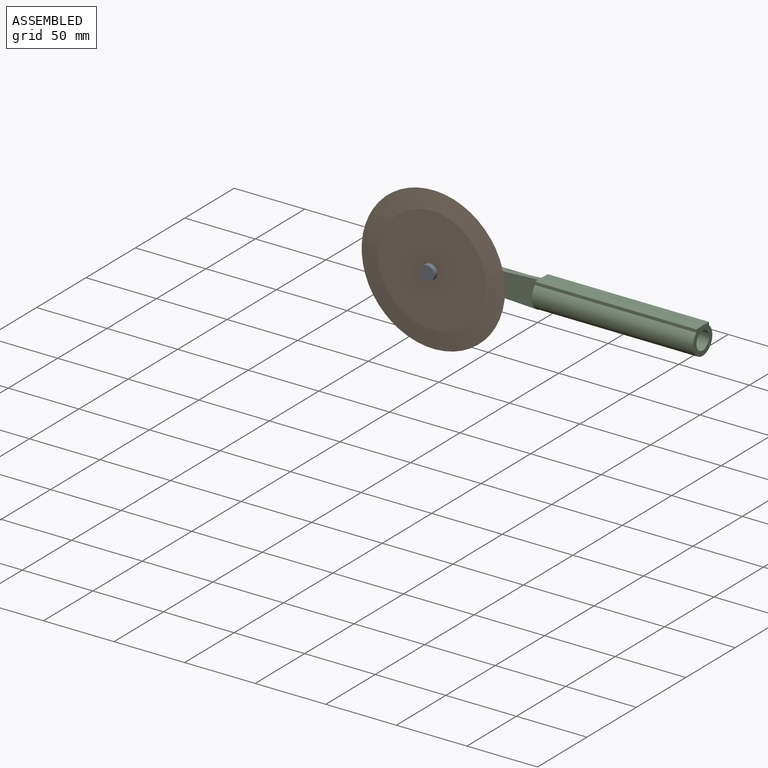
[diagram: assembled view]
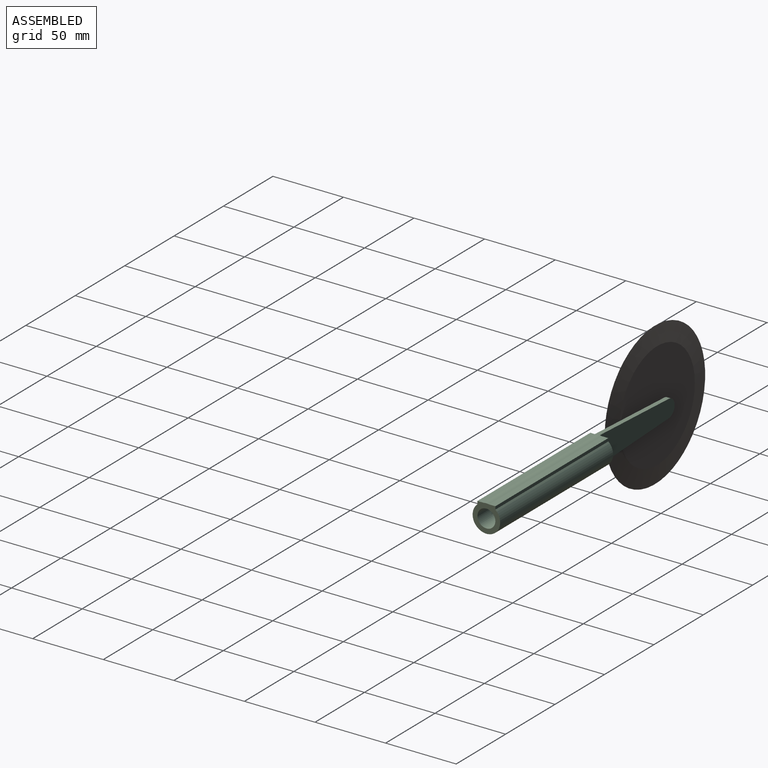
[diagram: assembled view, second angle]
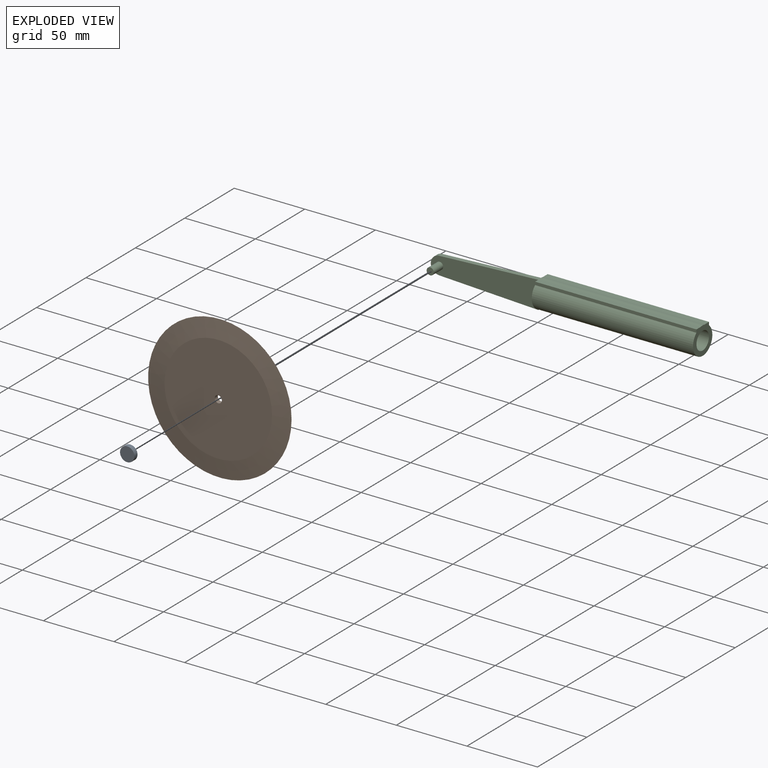
[diagram: exploded view]
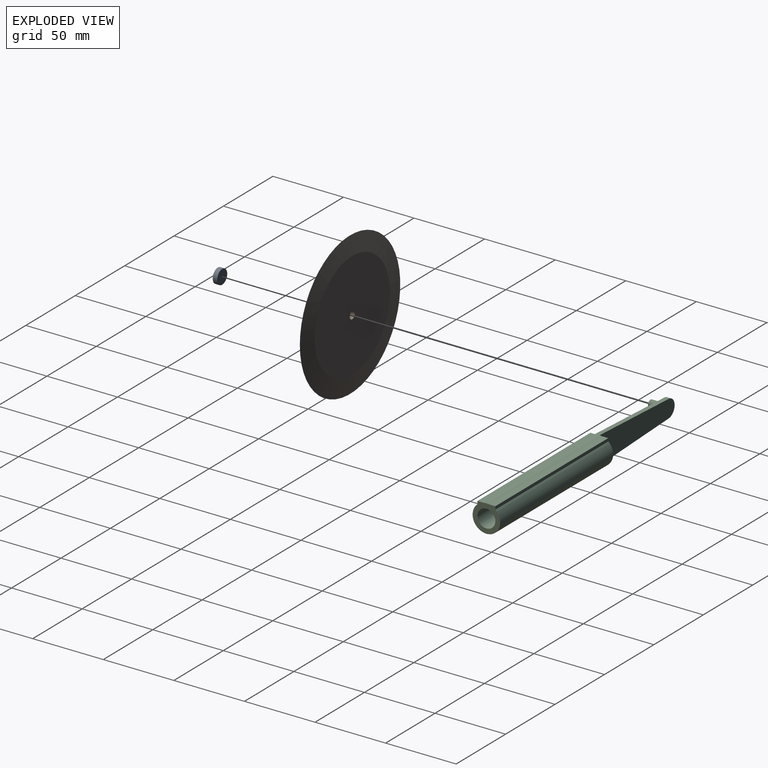
[diagram: exploded view, second angle]
ASSEMBLY  parts=3 mates=2
PART A: 3 faces, bbox 10.2x3.2x10.2 mm
  f0: cylinder r=5.08mm len=10.16mm, axis (0,1,0), area 101.3mm2, adj f1,f2
  f1: plane 10.16x10.16mm, normal (0,-1,0), area 81.1mm2, adj f0
  f2: plane 10.16x10.16mm, normal (0,1,0), area 81.1mm2, adj f0
PART B: 5 faces, bbox 3.2x101.6x101.6 mm
  f0: plane 76.2x76.2mm, normal (-1,0,0), area 4540.1mm2, adj f1,f4
  f1: cone r=50.8mm half-angle=82.9deg, axis (1,0,0), area 3574.6mm2, adj f0,f2
  f2: cone r=38.1mm half-angle=82.9deg, axis (-1,0,0), area 3574.6mm2, adj f1,f3
  f3: plane 76.2x76.2mm, normal (1,0,0), area 4540.1mm2, adj f2,f4
  f4: cylinder r=2.54mm len=5.08mm, axis (1,0,0), area 50.7mm2, adj f0,f3
PART C: 19 faces, bbox 190.4x22.5x19.5 mm
  f0: plane 18.78x6.59mm, normal (-1,0,0), area 92.3mm2, adj f3,f9,f10,f15
  f1: cylinder r=9.76mm len=114.3mm, axis (-1,0,0), area 460.3mm2, adj f2,f4,f8,f9
  f2: plane 19.52x11.76mm, normal (-1,0,0), area 153.6mm2, adj f1,f3,f7,f8,f13,f16
  f3: cylinder r=9.76mm len=114.3mm, axis (-1,0,0), area 5429.7mm2, adj f0,f2,f4,f7,f10,f11
  f4: plane 19.52x19.52mm, normal (1,0,0), area 180mm2, adj f1,f3,f5,f7,f8,f9,f10
  f5: cylinder r=6.35mm len=25.4mm, axis (-1,0,0), area 1013.4mm2, adj f4,f6
  f6: plane 12.7x12.7mm, normal (1,0,0), area 126.7mm2, adj f5
  f7: plane 114.3x2.14mm, normal (0,1,0), area 244.7mm2, adj f2,f3,f4,f8
  f8: plane 114.3x4.35mm, normal (0,0,1), area 497.3mm2, adj f1,f2,f4,f7
  f9: plane 114.3x4.35mm, normal (0,0,1), area 497.3mm2, adj f0,f1,f4,f10,f13
  f10: plane 114.3x2.14mm, normal (0,-1,0), area 244.7mm2, adj f0,f3,f4,f9
  f11: plane 3.18x0.53mm, normal (1,0,0), area 0.6mm2, adj f3,f12,f15
  f12: plane 69.85x3.38mm, normal (-0.05,0,-1), area 222mm2, adj f11,f14,f15,f16
  f13: plane 69.85x3.38mm, normal (-0.05,0,1), area 222mm2, adj f2,f9,f14,f15,f16
  f14: cylinder r=6.27mm len=12.55mm, axis (0,1,0), area 62.6mm2, adj f12,f13,f15,f16
  f15: plane 76.12x19.32mm, normal (0,-1,0), area 1154.3mm2, adj f0,f11,f12,f13,f14,f17
  f16: plane 76.12x19.32mm, normal (0,1,0), area 1174.6mm2, adj f2,f12,f13,f14
  f17: cylinder r=2.54mm len=9.53mm, axis (0,1,0), area 152mm2, adj f15,f18
  f18: plane 5.08x5.08mm, normal (0,-1,0), area 20.3mm2, adj f17
PLACE A t=(-74.09,-74.28,23.08)mm
PLACE B rot(axis=(0.58,-0.58,-0.58),120deg) t=(-74.09,-63.84,23.08)mm
PLACE C t=(52.91,-61.58,23.08)mm
MATE revolute B.f1 <-> C.f14  axis (0,1,0) through (-74.09,-69.52,23.08)mm
MATE fastened A.f0 <-> C.f14  axis (0,1,0) through (-74.09,-74.28,23.08)mm
